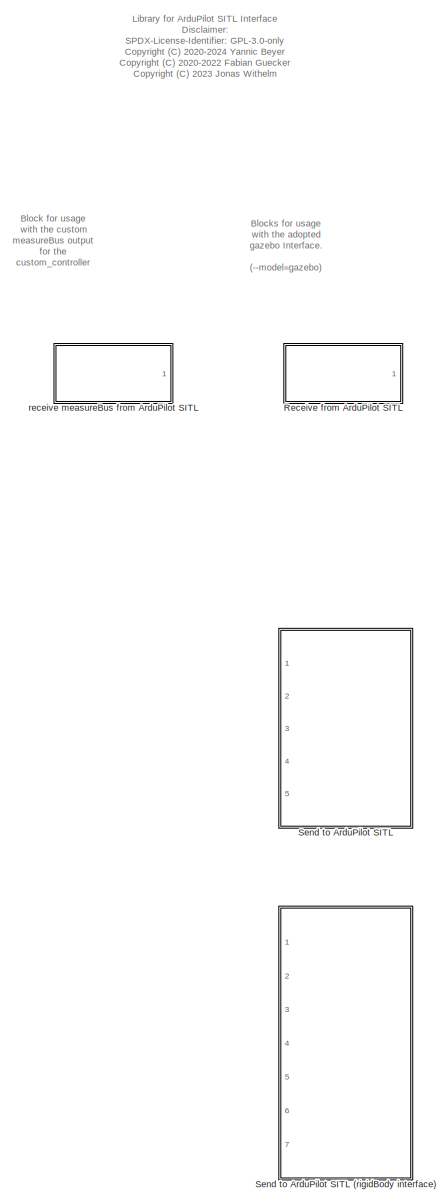
[diagram: root canvas - part 1/2, left side, full height]
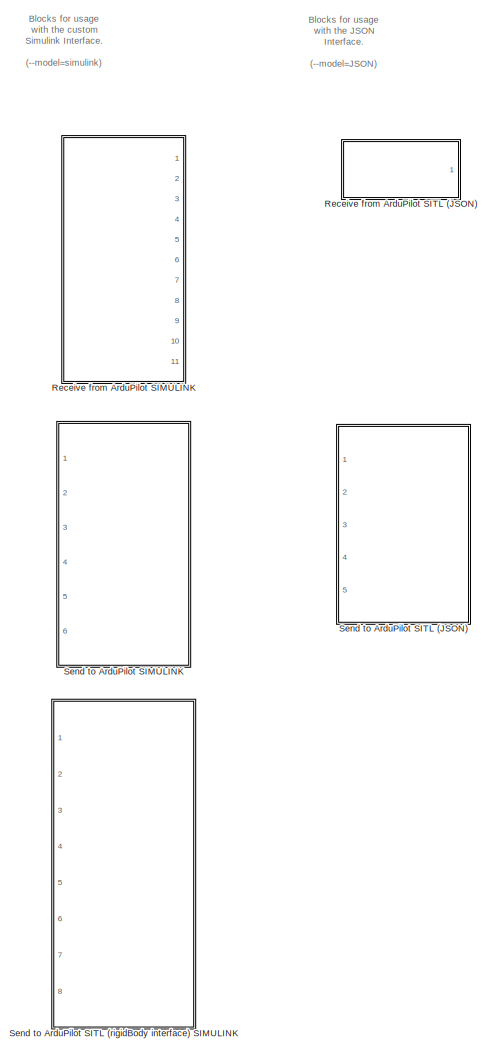
[diagram: root canvas - part 2/2, right side, full height]
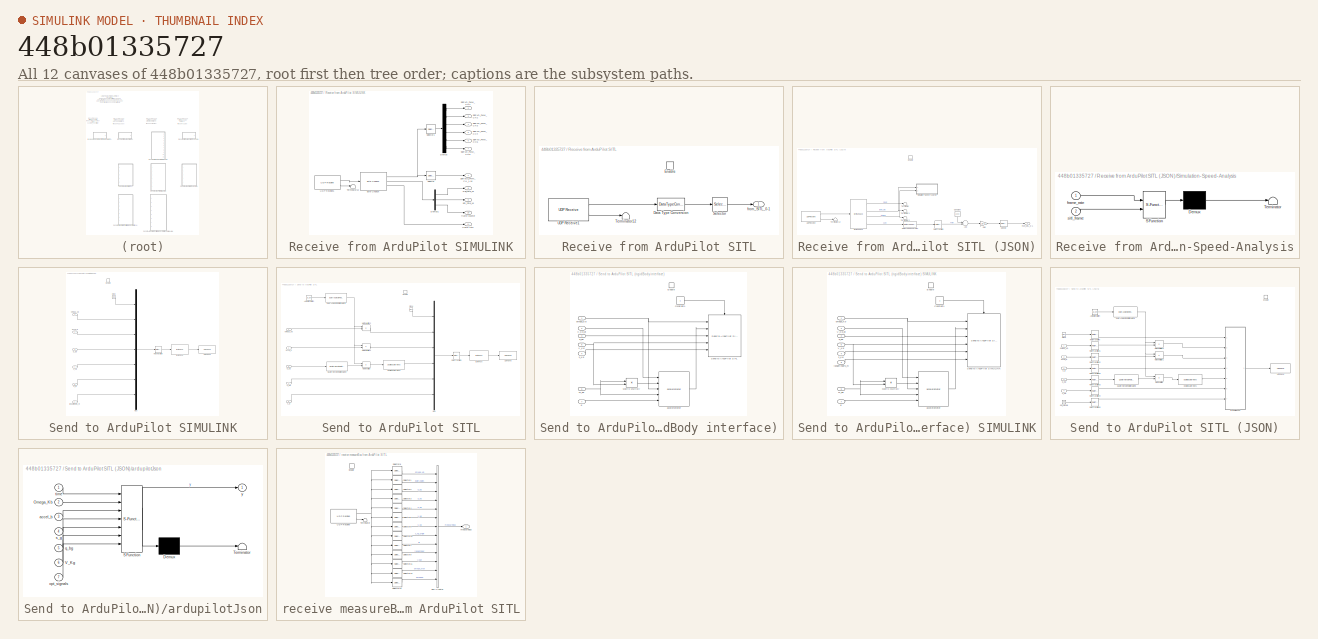
[diagram: thumbnail index - all 12 canvases of the model, root first then tree order]
MODEL slx_448b01335727
KIND library
CONFIG AbsTol = auto
CONFIG EnableMultiTasking = off
CONFIG FixedStep = auto
CONFIG MaxStep = auto
CONFIG MinStep = auto
CONFIG RelTol = 1e-3
CONFIG SampleTimeConstraint = Unconstrained
CONFIG Solver = VariableStepAuto
CONFIG SolverName = VariableStepAuto
CONFIG StartTime = 0.0
CONFIG StopTime = 10.0
BLOCK [SubSystem] Receive from ArduPilot SIMULINK
  Ports = [0, 11]
  RequestExecContextInheritance = off
BLOCK [Reference] Receive from ArduPilot SIMULINK/Byte Unpack  REF=etargetslib/Byte Unpack
  Ports = [1, 3]
  SourceBlock = etargetslib/Byte Unpack
  SourceProductName = /root/.matlab/R2018b/slblocks_master.db is not a database. (file is encrypted or is not a database)
  SourceType = Byte Unpack
BLOCK [Demux] Receive from ArduPilot SIMULINK/Demux
  DisplayOption = bar
  Outputs = 6
  Ports = [1, 6]
BLOCK [Demux] Receive from ArduPilot SIMULINK/Demux1
  DisplayOption = bar
  Outputs = 3
  Ports = [1, 3]
BLOCK [Outport] Receive from ArduPilot SIMULINK/SERVOS_PWM_CH_1-16
  IconDisplay = Port number
BLOCK [Outport] Receive from ArduPilot SIMULINK/SERVO_PWM_CH1
  IconDisplay = Port number
  Port = 2
BLOCK [Outport] Receive from ArduPilot SIMULINK/SERVO_PWM_CH2
  IconDisplay = Port number
  Port = 3
BLOCK [Outport] Receive from ArduPilot SIMULINK/SERVO_PWM_CH3
  IconDisplay = Port number
  Port = 4
BLOCK [Outport] Receive from ArduPilot SIMULINK/SERVO_PWM_CH4
  IconDisplay = Port number
  Port = 5
BLOCK [Outport] Receive from ArduPilot SIMULINK/SERVO_PWM_CH5
  IconDisplay = Port number
  Port = 6
BLOCK [Outport] Receive from ArduPilot SIMULINK/SERVO_PWM_CH6
  IconDisplay = Port number
  Port = 7
BLOCK [Selector] Receive from ArduPilot SIMULINK/Selector
  IndexOptions = Index vector (dialog)
  Indices = [1:16]
  InputPortWidth = 16
  OutputSizes = 1
  Ports = [1, 1]
BLOCK [Selector] Receive from ArduPilot SIMULINK/Selector1
  IndexOptions = Index vector (dialog)
  Indices = [1:6]
  InputPortWidth = 16
  OutputSizes = 1
  Ports = [1, 1]
BLOCK [Terminator] Receive from ArduPilot SIMULINK/Terminator12
BLOCK [Reference] Receive from ArduPilot SIMULINK/UDP Receive1  REF=dspnetwork/UDP Receive
  Ports = [0, 2]
  SourceBlock = dspnetwork/UDP Receive
  SourceProductBaseCode = DS
  SourceProductName = DSP System Toolbox
  SourceType = UDP Receive
BLOCK [Outport] Receive from ArduPilot SIMULINK/frame counter
  IconDisplay = Port number
  Port = 10
BLOCK [Outport] Receive from ArduPilot SIMULINK/frame rate
  IconDisplay = Port number
  Port = 11
BLOCK [Outport] Receive from ArduPilot SIMULINK/sim_time_us
  IconDisplay = Port number
  Port = 9
BLOCK [Outport] Receive from ArduPilot SIMULINK/wall_time_us
  IconDisplay = Port number
  Port = 8
BLOCK [SubSystem] Receive from ArduPilot SITL
  Ports = [0, 1, 1]
  RequestExecContextInheritance = off
BLOCK [SubSystem] Receive from ArduPilot SITL (JSON)
  Ports = [0, 1, 1]
  RequestExecContextInheritance = off
BLOCK [Sum] Receive from ArduPilot SITL (JSON)/Add
  InputSameDT = off
  Inputs = -+
  OutDataTypeStr = Inherit: Inherit via internal rule
  Ports = [2, 1]
  SaturateOnIntegerOverflow = off
BLOCK [Reference] Receive from ArduPilot SITL (JSON)/Byte Unpack  REF=etargetslib/Byte Unpack
  Ports = [1, 4]
  SourceBlock = etargetslib/Byte Unpack
  SourceType = Byte Unpack
BLOCK [Constant] Receive from ArduPilot SITL (JSON)/Constant
  Value = 1000
BLOCK [DataTypeConversion] Receive from ArduPilot SITL (JSON)/Data Type Conversion
  OutDataTypeStr = double
  RndMeth = Floor
  SaturateOnIntegerOverflow = off
BLOCK [EnablePort] Receive from ArduPilot SITL (JSON)/Enable
  Ports = []
BLOCK [Gain] Receive from ArduPilot SITL (JSON)/Gain
  Gain = 1e-3
  OutDataTypeStr = Inherit: Inherit via internal rule
  ParamDataTypeStr = Inherit: Inherit via internal rule
  SaturateOnIntegerOverflow = off
BLOCK [RateTransition] Receive from ArduPilot SITL (JSON)/Rate Transition
BLOCK [Selector] Receive from ArduPilot SITL (JSON)/Selector
  IndexOptions = Index vector (dialog)
  Indices = idx
  InputPortWidth = 16
  OutputSizes = 1
  Ports = [1, 1]
BLOCK [SubSystem] Receive from ArduPilot SITL (JSON)/Simulation-Speed-Analysis
  Commented = on
  ErrorFcn = Stateflow.Translate.translate
  PermitHierarchicalResolution = ExplicitOnly
  Ports = [2]
  RequestExecContextInheritance = off
  SFBlockType = MATLAB Function
  TreatAsAtomicUnit = on
BLOCK [Demux] Receive from ArduPilot SITL (JSON)/Simulation-Speed-Analysis/ Demux 
  Outputs = 1
  Ports = [1, 1]
BLOCK [S-Function] Receive from ArduPilot SITL (JSON)/Simulation-Speed-Analysis/ SFunction 
  EnableBusSupport = off
  FunctionName = sf_sfun
  Parameters = speed_printout_frames
  PortCounts = [2 1]
  Ports = [2, 1]
  SFcnIsStateOwnerBlock = off
  SFunctionDeploymentMode = off
  Tag = Stateflow S-Function ardupilot_sitl_lib 1
BLOCK [Terminator] Receive from ArduPilot SITL (JSON)/Simulation-Speed-Analysis/ Terminator 
BLOCK [Inport] Receive from ArduPilot SITL (JSON)/Simulation-Speed-Analysis/frame_rate
  IconDisplay = Port number
BLOCK [Inport] Receive from ArduPilot SITL (JSON)/Simulation-Speed-Analysis/sitl_frame
  IconDisplay = Port number
  Port = 2
BLOCK [Terminator] Receive from ArduPilot SITL (JSON)/Terminator
BLOCK [Terminator] Receive from ArduPilot SITL (JSON)/Terminator1
BLOCK [Terminator] Receive from ArduPilot SITL (JSON)/Terminator12
BLOCK [Terminator] Receive from ArduPilot SITL (JSON)/Terminator2
BLOCK [Reference] Receive from ArduPilot SITL (JSON)/UDP Receive  REF=dspnetwork/UDP Receive
  Ports = [0, 2]
  SourceBlock = dspnetwork/UDP Receive
  SourceProductBaseCode = DS
  SourceProductName = DSP System Toolbox
  SourceType = UDP Receive
BLOCK [Outport] Receive from ArduPilot SITL (JSON)/from_SITL_0-1
  IconDisplay = Port number
BLOCK [DataTypeConversion] Receive from ArduPilot SITL/Data Type Conversion
  OutDataTypeStr = double
  RndMeth = Floor
  SaturateOnIntegerOverflow = off
BLOCK [EnablePort] Receive from ArduPilot SITL/Enable
  Ports = []
BLOCK [Selector] Receive from ArduPilot SITL/Selector
  IndexOptions = Index vector (dialog)
  Indices = idx
  InputPortWidth = 16
  OutputSizes = 1
  Ports = [1, 1]
BLOCK [Terminator] Receive from ArduPilot SITL/Terminator12
BLOCK [Reference] Receive from ArduPilot SITL/UDP Receive1  REF=dspnetwork/UDP Receive
  Ports = [0, 2]
  SourceBlock = dspnetwork/UDP Receive
  SourceProductBaseCode = DS
  SourceProductName = DSP System Toolbox
  SourceType = UDP Receive
BLOCK [Outport] Receive from ArduPilot SITL/from_SITL_0-1
  IconDisplay = Port number
BLOCK [SubSystem] Send to ArduPilot SIMULINK
  Ports = [6, 0, 1]
  RequestExecContextInheritance = off
BLOCK [Reference] Send to ArduPilot SIMULINK/Byte Pack  REF=etargetslib/Byte Pack
  Ports = [1, 1]
  SourceBlock = etargetslib/Byte Pack
  SourceProductName = /root/.matlab/R2018b/slblocks_master.db is not a database. (file is encrypted or is not a database)
  SourceType = Byte pack
BLOCK [Clock] Send to ArduPilot SIMULINK/Clock
BLOCK [EnablePort] Send to ArduPilot SIMULINK/Enable
  Ports = []
BLOCK [Mux] Send to ArduPilot SIMULINK/Mux
  DisplayOption = bar
  Inputs = 7
  Ports = [7, 1]
BLOCK [RateTransition] Send to ArduPilot SIMULINK/Rate Transition
  OutPortSampleTime = sample_time
BLOCK [Reference] Send to ArduPilot SIMULINK/UDP Send  REF=dspnetwork/UDP Send
  Ports = [1]
  SourceBlock = dspnetwork/UDP Send
  SourceProductBaseCode = DS
  SourceProductName = DSP System Toolbox
  SourceType = UDP Send
BLOCK [Inport] Send to ArduPilot SIMULINK/V_Kg
  IconDisplay = Port number
  OutDataTypeStr = double
  Port = 4
  PortDimensions = [3]
  SignalType = real
  VarSizeSig = No
BLOCK [Inport] Send to ArduPilot SIMULINK/accel_b
  IconDisplay = Port number
  OutDataTypeStr = double
  Port = 2
  PortDimensions = [3]
  SignalType = real
  VarSizeSig = No
BLOCK [Inport] Send to ArduPilot SIMULINK/omega_Kb
  IconDisplay = Port number
  OutDataTypeStr = double
  PortDimensions = [3]
  SignalType = real
  VarSizeSig = No
BLOCK [Inport] Send to ArduPilot SIMULINK/q_gb
  IconDisplay = Port number
  OutDataTypeStr = double
  Port = 3
  PortDimensions = [4]
  SignalType = real
  VarSizeSig = No
BLOCK [Inport] Send to ArduPilot SIMULINK/rangefinders_m
  IconDisplay = Port number
  OutDataTypeStr = double
  Port = 6
  PortDimensions = [6]
  SignalType = real
  VarSizeSig = No
BLOCK [Inport] Send to ArduPilot SIMULINK/s_g
  IconDisplay = Port number
  OutDataTypeStr = double
  Port = 5
  PortDimensions = [3]
  SignalType = real
  VarSizeSig = No
BLOCK [SubSystem] Send to ArduPilot SITL
  Ports = [5, 0, 1]
  RequestExecContextInheritance = off
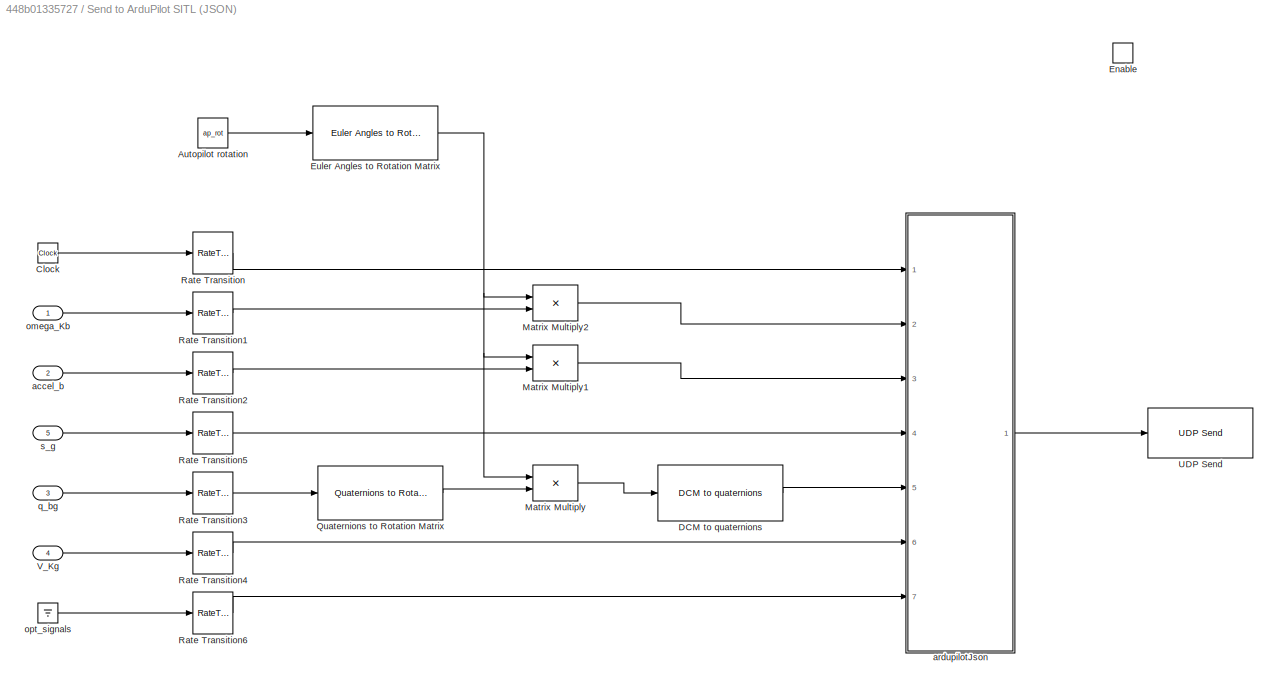
BLOCK [SubSystem] Send to ArduPilot SITL (JSON)
  Ports = [5, 0, 1]
  RequestExecContextInheritance = off
BLOCK [Constant] Send to ArduPilot SITL (JSON)/Autopilot rotation
  Value = ap_rot
BLOCK [Clock] Send to ArduPilot SITL (JSON)/Clock
BLOCK [Reference] Send to ArduPilot SITL (JSON)/DCM to quaternions  REF=axes_transformation_lib/DCM to quaternions  (lib defined in slx_69e2413c78c0)
  Ports = [1, 1]
  SourceBlock = axes_transformation_lib/DCM to quaternions
  SourceProductName = LADAC
  SourceType = SubSystem
BLOCK [EnablePort] Send to ArduPilot SITL (JSON)/Enable
  Ports = []
  PropagateVarSize = During execution
BLOCK [Reference] Send to ArduPilot SITL (JSON)/Euler Angles to Rotation Matrix  REF=axes_transformation_lib/Euler Angles to Rotation Matrix  (lib defined in slx_69e2413c78c0)
  Ports = [1, 1]
  SourceBlock = axes_transformation_lib/Euler Angles to Rotation Matrix
  SourceProductName = LADAC
  SourceType = SubSystem
BLOCK [Product] Send to ArduPilot SITL (JSON)/Matrix Multiply
  InputSameDT = off
  Multiplication = Matrix(*)
  OutDataTypeStr = Inherit: Inherit via internal rule
  Ports = [2, 1]
  RndMeth = Floor
  SaturateOnIntegerOverflow = off
BLOCK [Product] Send to ArduPilot SITL (JSON)/Matrix Multiply1
  InputSameDT = off
  Multiplication = Matrix(*)
  OutDataTypeStr = Inherit: Inherit via internal rule
  Ports = [2, 1]
  RndMeth = Floor
  SaturateOnIntegerOverflow = off
BLOCK [Product] Send to ArduPilot SITL (JSON)/Matrix Multiply2
  InputSameDT = off
  Multiplication = Matrix(*)
  OutDataTypeStr = Inherit: Inherit via internal rule
  Ports = [2, 1]
  RndMeth = Floor
  SaturateOnIntegerOverflow = off
BLOCK [Reference] Send to ArduPilot SITL (JSON)/Quaternions to Rotation Matrix  REF=axes_transformation_lib/Quaternions to Rotation Matrix  (lib defined in slx_69e2413c78c0)
  Ports = [1, 1]
  SourceBlock = axes_transformation_lib/Quaternions to Rotation Matrix
  SourceProductName = LADAC
  SourceType = SubSystem
BLOCK [RateTransition] Send to ArduPilot SITL (JSON)/Rate Transition
  OutPortSampleTime = sample_time
BLOCK [RateTransition] Send to ArduPilot SITL (JSON)/Rate Transition1
  OutPortSampleTime = sample_time
BLOCK [RateTransition] Send to ArduPilot SITL (JSON)/Rate Transition2
  OutPortSampleTime = sample_time
BLOCK [RateTransition] Send to ArduPilot SITL (JSON)/Rate Transition3
  OutPortSampleTime = sample_time
BLOCK [RateTransition] Send to ArduPilot SITL (JSON)/Rate Transition4
  OutPortSampleTime = sample_time
BLOCK [RateTransition] Send to ArduPilot SITL (JSON)/Rate Transition5
  OutPortSampleTime = sample_time
BLOCK [RateTransition] Send to ArduPilot SITL (JSON)/Rate Transition6
  OutPortSampleTime = sample_time
BLOCK [Reference] Send to ArduPilot SITL (JSON)/UDP Send  REF=dspnetwork/UDP Send
  Ports = [1]
  SourceBlock = dspnetwork/UDP Send
  SourceProductBaseCode = DS
  SourceProductName = DSP System Toolbox
  SourceType = UDP Send
BLOCK [Inport] Send to ArduPilot SITL (JSON)/V_Kg
  IconDisplay = Port number
  Port = 4
BLOCK [Inport] Send to ArduPilot SITL (JSON)/accel_b
  IconDisplay = Port number
  Port = 2
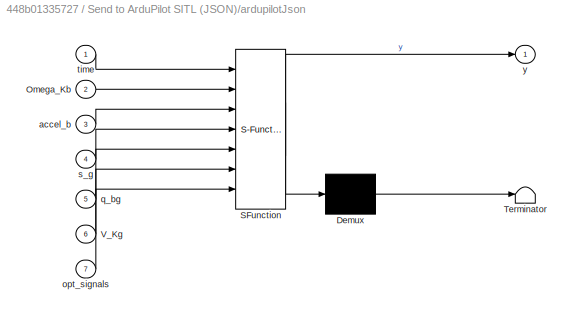
BLOCK [SubSystem] Send to ArduPilot SITL (JSON)/ardupilotJson
  ErrorFcn = Stateflow.Translate.translate
  PermitHierarchicalResolution = ExplicitOnly
  Ports = [7, 1]
  RequestExecContextInheritance = off
  SFBlockType = MATLAB Function
  TreatAsAtomicUnit = on
BLOCK [Demux] Send to ArduPilot SITL (JSON)/ardupilotJson/ Demux 
  Outputs = 1
  Ports = [1, 1]
BLOCK [S-Function] Send to ArduPilot SITL (JSON)/ardupilotJson/ SFunction 
  EnableBusSupport = off
  FunctionName = sf_sfun
  Parameters = opt_signals_uint8
  PortCounts = [7 2]
  Ports = [7, 2]
  SFcnIsStateOwnerBlock = off
  SFunctionDeploymentMode = off
  Tag = Stateflow S-Function ardupilot_sitl_lib 2
BLOCK [Terminator] Send to ArduPilot SITL (JSON)/ardupilotJson/ Terminator 
BLOCK [Inport] Send to ArduPilot SITL (JSON)/ardupilotJson/Omega_Kb
  IconDisplay = Port number
  Port = 2
BLOCK [Inport] Send to ArduPilot SITL (JSON)/ardupilotJson/V_Kg
  IconDisplay = Port number
  Port = 6
BLOCK [Inport] Send to ArduPilot SITL (JSON)/ardupilotJson/accel_b
  IconDisplay = Port number
  Port = 3
BLOCK [Inport] Send to ArduPilot SITL (JSON)/ardupilotJson/opt_signals
  IconDisplay = Port number
  Port = 7
BLOCK [Inport] Send to ArduPilot SITL (JSON)/ardupilotJson/q_bg
  IconDisplay = Port number
  Port = 5
BLOCK [Inport] Send to ArduPilot SITL (JSON)/ardupilotJson/s_g
  IconDisplay = Port number
  Port = 4
BLOCK [Inport] Send to ArduPilot SITL (JSON)/ardupilotJson/time
  IconDisplay = Port number
BLOCK [Outport] Send to ArduPilot SITL (JSON)/ardupilotJson/y
  IconDisplay = Port number
BLOCK [Inport] Send to ArduPilot SITL (JSON)/omega_Kb
  IconDisplay = Port number
BLOCK [Ground] Send to ArduPilot SITL (JSON)/opt_signals
BLOCK [Inport] Send to ArduPilot SITL (JSON)/q_bg
  IconDisplay = Port number
  Port = 3
BLOCK [Inport] Send to ArduPilot SITL (JSON)/s_g
  IconDisplay = Port number
  Port = 5
BLOCK [SubSystem] Send to ArduPilot SITL (rigidBody interface)
  Ports = [7, 0, 1]
  RequestExecContextInheritance = off
BLOCK [SubSystem] Send to ArduPilot SITL (rigidBody interface) SIMULINK
  Ports = [8, 0, 1]
  RequestExecContextInheritance = off
BLOCK [Constant] Send to ArduPilot SITL (rigidBody interface) SIMULINK/Constant1
BLOCK [EnablePort] Send to ArduPilot SITL (rigidBody interface) SIMULINK/Enable
  Ports = []
BLOCK [Inport] Send to ArduPilot SITL (rigidBody interface) SIMULINK/M_bg
  IconDisplay = Port number
  Port = 6
BLOCK [Product] Send to ArduPilot SITL (rigidBody interface) SIMULINK/Matrix Multiply
  InputSameDT = off
  Multiplication = Matrix(*)
  OutDataTypeStr = Inherit: Inherit via internal rule
  Ports = [2, 1]
  RndMeth = Floor
  SaturateOnIntegerOverflow = off
BLOCK [Reference] Send to ArduPilot SITL (rigidBody interface) SIMULINK/Send to ArduPilot SIMULINK  REF=$bdroot/Send to ArduPilot SIMULINK
  Ports = [6, 0, 1]
  SourceBlock = $bdroot/Send to ArduPilot SIMULINK
BLOCK [Inport] Send to ArduPilot SITL (rigidBody interface) SIMULINK/V_Kb_dt
  IconDisplay = Port number
  Port = 2
BLOCK [Inport] Send to ArduPilot SITL (rigidBody interface) SIMULINK/V_Kg
  IconDisplay = Port number
  Port = 5
BLOCK [Reference] Send to ArduPilot SITL (rigidBody interface) SIMULINK/accelerometer  REF=sensors_lib/accelerometer  (lib defined in mdl_052e9be48c24, mdl_88e42053cf8c, +1 more)
  Ports = [5, 1]
  SourceBlock = sensors_lib/accelerometer
  SourceProductName = LADAC
  SourceType = SubSystem
BLOCK [Inport] Send to ArduPilot SITL (rigidBody interface) SIMULINK/g
  IconDisplay = Port number
  Port = 7
BLOCK [Inport] Send to ArduPilot SITL (rigidBody interface) SIMULINK/omega_Kb
  IconDisplay = Port number
BLOCK [Inport] Send to ArduPilot SITL (rigidBody interface) SIMULINK/q_bg
  IconDisplay = Port number
  Port = 3
BLOCK [Inport] Send to ArduPilot SITL (rigidBody interface) SIMULINK/rangefinders_m
  IconDisplay = Port number
  Port = 8
BLOCK [Inport] Send to ArduPilot SITL (rigidBody interface) SIMULINK/s_Kg
  IconDisplay = Port number
  Port = 4
BLOCK [Constant] Send to ArduPilot SITL (rigidBody interface)/Constant1
BLOCK [EnablePort] Send to ArduPilot SITL (rigidBody interface)/Enable
  Ports = []
BLOCK [Inport] Send to ArduPilot SITL (rigidBody interface)/M_bg
  IconDisplay = Port number
  Port = 6
BLOCK [Product] Send to ArduPilot SITL (rigidBody interface)/Matrix Multiply
  InputSameDT = off
  Multiplication = Matrix(*)
  OutDataTypeStr = Inherit: Inherit via internal rule
  Ports = [2, 1]
  RndMeth = Floor
  SaturateOnIntegerOverflow = off
BLOCK [Reference] Send to ArduPilot SITL (rigidBody interface)/Send to ArduPilot SITL  REF=$bdroot/Send to ArduPilot SITL
  Ports = [5, 0, 1]
  SourceBlock = $bdroot/Send to ArduPilot SITL
BLOCK [Inport] Send to ArduPilot SITL (rigidBody interface)/V_Kb_dt
  IconDisplay = Port number
  Port = 2
BLOCK [Inport] Send to ArduPilot SITL (rigidBody interface)/V_Kg
  IconDisplay = Port number
  Port = 5
BLOCK [Reference] Send to ArduPilot SITL (rigidBody interface)/accelerometer  REF=sensors_lib/accelerometer  (lib defined in mdl_052e9be48c24, mdl_88e42053cf8c, +1 more)
  Ports = [5, 1]
  SourceBlock = sensors_lib/accelerometer
  SourceProductName = LADAC
  SourceType = SubSystem
BLOCK [Inport] Send to ArduPilot SITL (rigidBody interface)/g
  IconDisplay = Port number
  Port = 7
BLOCK [Inport] Send to ArduPilot SITL (rigidBody interface)/omega_Kb
  IconDisplay = Port number
BLOCK [Inport] Send to ArduPilot SITL (rigidBody interface)/q_bg
  IconDisplay = Port number
  Port = 3
BLOCK [Inport] Send to ArduPilot SITL (rigidBody interface)/s_Kg
  IconDisplay = Port number
  Port = 4
BLOCK [Constant] Send to ArduPilot SITL/Autopilot rotation
  Value = ap_rot
BLOCK [Reference] Send to ArduPilot SITL/Byte Pack  REF=etargetslib/Byte Pack
  Ports = [1, 1]
  SourceBlock = etargetslib/Byte Pack
  SourceProductName = /root/.matlab/R2018b/slblocks_master.db is not a database. (file is encrypted or is not a database)
  SourceType = Byte pack
BLOCK [Clock] Send to ArduPilot SITL/Clock
BLOCK [Reference] Send to ArduPilot SITL/DCM to quaternions  REF=axes_transformation_lib/DCM to quaternions  (lib defined in slx_69e2413c78c0)
  Ports = [1, 1]
  SourceBlock = axes_transformation_lib/DCM to quaternions
  SourceProductName = LADAC
  SourceType = SubSystem
BLOCK [EnablePort] Send to ArduPilot SITL/Enable
  Ports = []
BLOCK [Reference] Send to ArduPilot SITL/Euler Angles to Rotation Matrix  REF=axes_transformation_lib/Euler Angles to Rotation Matrix  (lib defined in slx_69e2413c78c0)
  Ports = [1, 1]
  SourceBlock = axes_transformation_lib/Euler Angles to Rotation Matrix
  SourceProductName = LADAC
  SourceType = SubSystem
BLOCK [Product] Send to ArduPilot SITL/Matrix Multiply
  InputSameDT = off
  Multiplication = Matrix(*)
  OutDataTypeStr = Inherit: Inherit via internal rule
  Ports = [2, 1]
  RndMeth = Floor
  SaturateOnIntegerOverflow = off
BLOCK [Product] Send to ArduPilot SITL/Matrix Multiply1
  InputSameDT = off
  Multiplication = Matrix(*)
  OutDataTypeStr = Inherit: Inherit via internal rule
  Ports = [2, 1]
  RndMeth = Floor
  SaturateOnIntegerOverflow = off
BLOCK [Product] Send to ArduPilot SITL/Matrix Multiply2
  InputSameDT = off
  Multiplication = Matrix(*)
  OutDataTypeStr = Inherit: Inherit via internal rule
  Ports = [2, 1]
  RndMeth = Floor
  SaturateOnIntegerOverflow = off
BLOCK [Mux] Send to ArduPilot SITL/Mux
  DisplayOption = bar
  Inputs = 6
  Ports = [6, 1]
BLOCK [Reference] Send to ArduPilot SITL/Quaternions to Rotation Matrix  REF=axes_transformation_lib/Quaternions to Rotation Matrix  (lib defined in slx_69e2413c78c0)
  Ports = [1, 1]
  SourceBlock = axes_transformation_lib/Quaternions to Rotation Matrix
  SourceProductName = LADAC
  SourceType = SubSystem
BLOCK [RateTransition] Send to ArduPilot SITL/Rate Transition
  OutPortSampleTime = sample_time
BLOCK [Reference] Send to ArduPilot SITL/UDP Send  REF=dspnetwork/UDP Send
  Ports = [1]
  SourceBlock = dspnetwork/UDP Send
  SourceProductBaseCode = DS
  SourceProductName = DSP System Toolbox
  SourceType = UDP Send
BLOCK [Inport] Send to ArduPilot SITL/V_Kg
  IconDisplay = Port number
  Port = 4
BLOCK [Inport] Send to ArduPilot SITL/accel_b
  IconDisplay = Port number
  Port = 2
BLOCK [Inport] Send to ArduPilot SITL/omega_Kb
  IconDisplay = Port number
BLOCK [Inport] Send to ArduPilot SITL/q_bg
  IconDisplay = Port number
  Port = 3
BLOCK [Inport] Send to ArduPilot SITL/s_g
  IconDisplay = Port number
  Port = 5
BLOCK [SubSystem] receive measureBus from ArduPilot SITL
  Ports = [0, 1, 1]
  RequestExecContextInheritance = off
BLOCK [BusCreator] receive measureBus from ArduPilot SITL/Bus Creator
  DisplayOption = bar
  InheritFromInputs = on
  Inputs = 13
  Ports = [13, 1]
BLOCK [EnablePort] receive measureBus from ArduPilot SITL/Enable
  Ports = []
BLOCK [Selector] receive measureBus from ArduPilot SITL/Selector1
  IndexOptions = Index vector (dialog)
  Indices = 4:6
  InputPortWidth = num_signals
  OutputSizes = 1
  Ports = [1, 1]
BLOCK [Selector] receive measureBus from ArduPilot SITL/Selector10
  IndexOptions = Index vector (dialog)
  Indices = 23:25
  InputPortWidth = num_signals
  OutputSizes = 1
  Ports = [1, 1]
BLOCK [Selector] receive measureBus from ArduPilot SITL/Selector11
  IndexOptions = Index vector (dialog)
  Indices = 35
  InputPortWidth = num_signals
  OutputSizes = 1
  Ports = [1, 1]
BLOCK [Selector] receive measureBus from ArduPilot SITL/Selector12
  IndexOptions = Index vector (dialog)
  Indices = 36:39
  InputPortWidth = num_signals
  OutputSizes = 1
  Ports = [1, 1]
BLOCK [Selector] receive measureBus from ArduPilot SITL/Selector13
  IndexOptions = Index vector (dialog)
  Indices = 40
  InputPortWidth = num_signals
  OutputSizes = 1
  Ports = [1, 1]
BLOCK [Selector] receive measureBus from ArduPilot SITL/Selector2
  IndexOptions = Index vector (dialog)
  Indices = 7:10
  InputPortWidth = num_signals
  OutputSizes = 1
  Ports = [1, 1]
BLOCK [Selector] receive measureBus from ArduPilot SITL/Selector3
  IndexOptions = Index vector (dialog)
  Indices = 11:13
  InputPortWidth = num_signals
  OutputSizes = 1
  Ports = [1, 1]
BLOCK [Selector] receive measureBus from ArduPilot SITL/Selector4
  IndexOptions = Index vector (dialog)
  Indices = 14:16
  InputPortWidth = num_signals
  OutputSizes = 1
  Ports = [1, 1]
BLOCK [Selector] receive measureBus from ArduPilot SITL/Selector5
  IndexOptions = Index vector (dialog)
  Indices = 17:19
  InputPortWidth = num_signals
  OutputSizes = 1
  Ports = [1, 1]
BLOCK [Selector] receive measureBus from ArduPilot SITL/Selector6
  IndexOptions = Index vector (dialog)
  Indices = 20:22
  InputPortWidth = num_signals
  OutputSizes = 1
  Ports = [1, 1]
BLOCK [Selector] receive measureBus from ArduPilot SITL/Selector7
  IndexOptions = Index vector (dialog)
  Indices = 26:28
  InputPortWidth = num_signals
  OutputSizes = 1
  Ports = [1, 1]
BLOCK [Selector] receive measureBus from ArduPilot SITL/Selector8
  IndexOptions = Index vector (dialog)
  Indices = [1,2,3]
  InputPortWidth = num_signals
  OutputSizes = 1
  Ports = [1, 1]
BLOCK [Selector] receive measureBus from ArduPilot SITL/Selector9
  IndexOptions = Index vector (dialog)
  Indices = 29:34
  InputPortWidth = num_signals
  OutputSizes = 1
  Ports = [1, 1]
BLOCK [Terminator] receive measureBus from ArduPilot SITL/Terminator
BLOCK [Reference] receive measureBus from ArduPilot SITL/UDP Receive  REF=dspnetwork/UDP Receive
  Ports = [0, 2]
  SourceBlock = dspnetwork/UDP Receive
  SourceProductBaseCode = DS
  SourceProductName = DSP System Toolbox
  SourceType = UDP Receive
BLOCK [Outport] receive measureBus from ArduPilot SITL/measureBus
  IconDisplay = Port number
ANNOTATION (root): Library for ArduPilot SITL Interface Disclaimer: SPDX-License-Identifier: GPL-3.0-only <copyright redacted>
ANNOTATION (root): Block for usage with the custom measureBus output for the custom_controller
ANNOTATION (root): Blocks for usage with the custom Simulink Interface. (--model=simulink)
ANNOTATION (root): Blocks for usage with the JSON Interface. (--model=JSON)
ANNOTATION (root): Blocks for usage with the adopted gazebo Interface. (--model=gazebo)
NET Receive from ArduPilot SIMULINK/Byte Unpack:1 -> Receive from ArduPilot SIMULINK/Selector1:1, Receive from ArduPilot SIMULINK/Selector:1
LINE Receive from ArduPilot SIMULINK/Byte Unpack:2 -> Receive from ArduPilot SIMULINK/Demux1:1
LINE Receive from ArduPilot SIMULINK/Byte Unpack:3 -> Receive from ArduPilot SIMULINK/frame rate:1
LINE Receive from ArduPilot SIMULINK/Demux1:1 -> Receive from ArduPilot SIMULINK/wall_time_us:1
LINE Receive from ArduPilot SIMULINK/Demux1:2 -> Receive from ArduPilot SIMULINK/sim_time_us:1
LINE Receive from ArduPilot SIMULINK/Demux1:3 -> Receive from ArduPilot SIMULINK/frame counter:1
LINE Receive from ArduPilot SIMULINK/Demux:1 -> Receive from ArduPilot SIMULINK/SERVO_PWM_CH1:1
LINE Receive from ArduPilot SIMULINK/Demux:2 -> Receive from ArduPilot SIMULINK/SERVO_PWM_CH2:1
LINE Receive from ArduPilot SIMULINK/Demux:3 -> Receive from ArduPilot SIMULINK/SERVO_PWM_CH3:1
LINE Receive from ArduPilot SIMULINK/Demux:4 -> Receive from ArduPilot SIMULINK/SERVO_PWM_CH4:1
LINE Receive from ArduPilot SIMULINK/Demux:5 -> Receive from ArduPilot SIMULINK/SERVO_PWM_CH5:1
LINE Receive from ArduPilot SIMULINK/Demux:6 -> Receive from ArduPilot SIMULINK/SERVO_PWM_CH6:1
LINE Receive from ArduPilot SIMULINK/Selector1:1 -> Receive from ArduPilot SIMULINK/Demux:1
LINE Receive from ArduPilot SIMULINK/Selector:1 -> Receive from ArduPilot SIMULINK/SERVOS_PWM_CH_1-16:1
LINE Receive from ArduPilot SIMULINK/UDP Receive1:1 -> Receive from ArduPilot SIMULINK/Byte Unpack:1
LINE Receive from ArduPilot SIMULINK/UDP Receive1:2 -> Receive from ArduPilot SIMULINK/Terminator12:1
LINE Receive from ArduPilot SITL/Data Type Conversion:1 -> Receive from ArduPilot SITL/Selector:1
LINE Receive from ArduPilot SITL/Selector:1 -> Receive from ArduPilot SITL/from_SITL_0-1:1
LINE Receive from ArduPilot SITL/UDP Receive1:1 -> Receive from ArduPilot SITL/Data Type Conversion:1
LINE Receive from ArduPilot SITL/UDP Receive1:2 -> Receive from ArduPilot SITL/Terminator12:1
LINE Send to ArduPilot SIMULINK/Byte Pack:1 -> Send to ArduPilot SIMULINK/UDP Send:1
LINE Send to ArduPilot SIMULINK/Clock:1 -> Send to ArduPilot SIMULINK/Mux:1
LINE Send to ArduPilot SIMULINK/Mux:1 -> Send to ArduPilot SIMULINK/Rate Transition:1
LINE Send to ArduPilot SIMULINK/Rate Transition:1 -> Send to ArduPilot SIMULINK/Byte Pack:1
LINE Send to ArduPilot SIMULINK/V_Kg:1 -> Send to ArduPilot SIMULINK/Mux:5
LINE Send to ArduPilot SIMULINK/accel_b:1 -> Send to ArduPilot SIMULINK/Mux:3
LINE Send to ArduPilot SIMULINK/omega_Kb:1 -> Send to ArduPilot SIMULINK/Mux:2
LINE Send to ArduPilot SIMULINK/q_gb:1 -> Send to ArduPilot SIMULINK/Mux:4
LINE Send to ArduPilot SIMULINK/rangefinders_m:1 -> Send to ArduPilot SIMULINK/Mux:7
LINE Send to ArduPilot SIMULINK/s_g:1 -> Send to ArduPilot SIMULINK/Mux:6
LINE Send to ArduPilot SITL (rigidBody interface) SIMULINK/Constant1:1 -> Send to ArduPilot SITL (rigidBody interface) SIMULINK/Send to ArduPilot SIMULINK:enable
NET Send to ArduPilot SITL (rigidBody interface) SIMULINK/M_bg:1 -> Send to ArduPilot SITL (rigidBody interface) SIMULINK/Matrix Multiply:1, Send to ArduPilot SITL (rigidBody interface) SIMULINK/accelerometer:4
LINE Send to ArduPilot SITL (rigidBody interface) SIMULINK/Matrix Multiply:1 -> Send to ArduPilot SITL (rigidBody interface) SIMULINK/accelerometer:2
LINE Send to ArduPilot SITL (rigidBody interface) SIMULINK/V_Kb_dt:1 -> Send to ArduPilot SITL (rigidBody interface) SIMULINK/accelerometer:1
NET Send to ArduPilot SITL (rigidBody interface) SIMULINK/V_Kg:1 -> Send to ArduPilot SITL (rigidBody interface) SIMULINK/Matrix Multiply:2, Send to ArduPilot SITL (rigidBody interface) SIMULINK/Send to ArduPilot SIMULINK:4
LINE Send to ArduPilot SITL (rigidBody interface) SIMULINK/accelerometer:1 -> Send to ArduPilot SITL (rigidBody interface) SIMULINK/Send to ArduPilot SIMULINK:2
LINE Send to ArduPilot SITL (rigidBody interface) SIMULINK/g:1 -> Send to ArduPilot SITL (rigidBody interface) SIMULINK/accelerometer:5
NET Send to ArduPilot SITL (rigidBody interface) SIMULINK/omega_Kb:1 -> Send to ArduPilot SITL (rigidBody interface) SIMULINK/Send to ArduPilot SIMULINK:1, Send to ArduPilot SITL (rigidBody interface) SIMULINK/accelerometer:3
LINE Send to ArduPilot SITL (rigidBody interface) SIMULINK/q_bg:1 -> Send to ArduPilot SITL (rigidBody interface) SIMULINK/Send to ArduPilot SIMULINK:3
LINE Send to ArduPilot SITL (rigidBody interface) SIMULINK/rangefinders_m:1 -> Send to ArduPilot SITL (rigidBody interface) SIMULINK/Send to ArduPilot SIMULINK:6
LINE Send to ArduPilot SITL (rigidBody interface) SIMULINK/s_Kg:1 -> Send to ArduPilot SITL (rigidBody interface) SIMULINK/Send to ArduPilot SIMULINK:5
LINE Send to ArduPilot SITL (rigidBody interface)/Constant1:1 -> Send to ArduPilot SITL (rigidBody interface)/Send to ArduPilot SITL:enable
NET Send to ArduPilot SITL (rigidBody interface)/M_bg:1 -> Send to ArduPilot SITL (rigidBody interface)/Matrix Multiply:1, Send to ArduPilot SITL (rigidBody interface)/accelerometer:4
LINE Send to ArduPilot SITL (rigidBody interface)/Matrix Multiply:1 -> Send to ArduPilot SITL (rigidBody interface)/accelerometer:2
LINE Send to ArduPilot SITL (rigidBody interface)/V_Kb_dt:1 -> Send to ArduPilot SITL (rigidBody interface)/accelerometer:1
NET Send to ArduPilot SITL (rigidBody interface)/V_Kg:1 -> Send to ArduPilot SITL (rigidBody interface)/Matrix Multiply:2, Send to ArduPilot SITL (rigidBody interface)/Send to ArduPilot SITL:4
LINE Send to ArduPilot SITL (rigidBody interface)/accelerometer:1 -> Send to ArduPilot SITL (rigidBody interface)/Send to ArduPilot SITL:2
LINE Send to ArduPilot SITL (rigidBody interface)/g:1 -> Send to ArduPilot SITL (rigidBody interface)/accelerometer:5
NET Send to ArduPilot SITL (rigidBody interface)/omega_Kb:1 -> Send to ArduPilot SITL (rigidBody interface)/Send to ArduPilot SITL:1, Send to ArduPilot SITL (rigidBody interface)/accelerometer:3
LINE Send to ArduPilot SITL (rigidBody interface)/q_bg:1 -> Send to ArduPilot SITL (rigidBody interface)/Send to ArduPilot SITL:3
LINE Send to ArduPilot SITL (rigidBody interface)/s_Kg:1 -> Send to ArduPilot SITL (rigidBody interface)/Send to ArduPilot SITL:5
LINE Send to ArduPilot SITL/Autopilot rotation:1 -> Send to ArduPilot SITL/Euler Angles to Rotation Matrix:1
LINE Send to ArduPilot SITL/Byte Pack:1 -> Send to ArduPilot SITL/UDP Send:1
LINE Send to ArduPilot SITL/Clock:1 -> Send to ArduPilot SITL/Mux:1
LINE Send to ArduPilot SITL/DCM to quaternions:1 -> Send to ArduPilot SITL/Mux:4
NET Send to ArduPilot SITL/Euler Angles to Rotation Matrix:1 -> Send to ArduPilot SITL/Matrix Multiply1:1, Send to ArduPilot SITL/Matrix Multiply2:1, Send to ArduPilot SITL/Matrix Multiply:1
LINE Send to ArduPilot SITL/Matrix Multiply1:1 -> Send to ArduPilot SITL/Mux:3
LINE Send to ArduPilot SITL/Matrix Multiply2:1 -> Send to ArduPilot SITL/Mux:2
LINE Send to ArduPilot SITL/Matrix Multiply:1 -> Send to ArduPilot SITL/DCM to quaternions:1
LINE Send to ArduPilot SITL/Mux:1 -> Send to ArduPilot SITL/Rate Transition:1
LINE Send to ArduPilot SITL/Quaternions to Rotation Matrix:1 -> Send to ArduPilot SITL/Matrix Multiply:2
LINE Send to ArduPilot SITL/Rate Transition:1 -> Send to ArduPilot SITL/Byte Pack:1
LINE Send to ArduPilot SITL/V_Kg:1 -> Send to ArduPilot SITL/Mux:5
LINE Send to ArduPilot SITL/accel_b:1 -> Send to ArduPilot SITL/Matrix Multiply1:2
LINE Send to ArduPilot SITL/omega_Kb:1 -> Send to ArduPilot SITL/Matrix Multiply2:2
LINE Send to ArduPilot SITL/q_bg:1 -> Send to ArduPilot SITL/Quaternions to Rotation Matrix:1
LINE Send to ArduPilot SITL/s_g:1 -> Send to ArduPilot SITL/Mux:6
LINE receive measureBus from ArduPilot SITL/Bus Creator:1 -> receive measureBus from ArduPilot SITL/measureBus:1
LINE receive measureBus from ArduPilot SITL/Selector10:1 -> receive measureBus from ArduPilot SITL/Bus Creator:8
LINE receive measureBus from ArduPilot SITL/Selector11:1 -> receive measureBus from ArduPilot SITL/Bus Creator:11
LINE receive measureBus from ArduPilot SITL/Selector12:1 -> receive measureBus from ArduPilot SITL/Bus Creator:12
LINE receive measureBus from ArduPilot SITL/Selector13:1 -> receive measureBus from ArduPilot SITL/Bus Creator:13
LINE receive measureBus from ArduPilot SITL/Selector1:1 -> receive measureBus from ArduPilot SITL/Bus Creator:2
LINE receive measureBus from ArduPilot SITL/Selector2:1 -> receive measureBus from ArduPilot SITL/Bus Creator:3
LINE receive measureBus from ArduPilot SITL/Selector3:1 -> receive measureBus from ArduPilot SITL/Bus Creator:4
LINE receive measureBus from ArduPilot SITL/Selector4:1 -> receive measureBus from ArduPilot SITL/Bus Creator:5
LINE receive measureBus from ArduPilot SITL/Selector5:1 -> receive measureBus from ArduPilot SITL/Bus Creator:6
LINE receive measureBus from ArduPilot SITL/Selector6:1 -> receive measureBus from ArduPilot SITL/Bus Creator:7
LINE receive measureBus from ArduPilot SITL/Selector7:1 -> receive measureBus from ArduPilot SITL/Bus Creator:9
LINE receive measureBus from ArduPilot SITL/Selector8:1 -> receive measureBus from ArduPilot SITL/Bus Creator:1
LINE receive measureBus from ArduPilot SITL/Selector9:1 -> receive measureBus from ArduPilot SITL/Bus Creator:10
NET receive measureBus from ArduPilot SITL/UDP Receive:1 -> receive measureBus from ArduPilot SITL/Selector10:1, receive measureBus from ArduPilot SITL/Selector11:1, receive measureBus from ArduPilot SITL/Selector12:1, receive measureBus from ArduPilot SITL/Selector13:1, receive measureBus from ArduPilot SITL/Selector1:1, receive measureBus from ArduPilot SITL/Selector2:1, receive measureBus from ArduPilot SITL/Selector3:1, receive measureBus from ArduPilot SITL/Selector4:1, receive measureBus from ArduPilot SITL/Selector5:1, receive measureBus from ArduPilot SITL/Selector6:1, receive measureBus from ArduPilot SITL/Selector7:1, receive measureBus from ArduPilot SITL/Selector8:1, receive measureBus from ArduPilot SITL/Selector9:1
LINE receive measureBus from ArduPilot SITL/UDP Receive:2 -> receive measureBus from ArduPilot SITL/Terminator:1
note: NET lines group one-source signal fan-out (src -> all destinations, sorted); 1:1 wires keep LINE
CHART Receive from ArduPilot SITL (JSON)/Simulation-Speed-Analysis states=1 transitions=1
  STATE_LABEL 'eML_blk_kernel()'
  STATE_LABEL 'SCRIPT:\nfunction fcn(frame_rate, sitl_frame, speed_printout_frames)\n    \n    sample_time = 1/double(frame_rate);\n\n    ardupilotSimSpeedAnalysis(sample_time, sitl_frame, speed_printout_frames);\n    \nend\n'
CHART Send to ArduPilot SITL (JSON)/ardupilotJson states=1 transitions=1
  STATE_LABEL 'eML_blk_kernel()'
  STATE_LABEL 'SCRIPT:\nfunction y = ardupilotJson(time, Omega_Kb, accel_b, s_g, q_bg, V_Kg, opt_signals, opt_signals_uint8)\nopt_signals_str = char(opt_signals_uint8);\nnum_f = count(opt_signals_str,\'%f\');\nif num_f ~= length(opt_signals)\n    error(\'Send to ArduPilot SITL (JSON): Number of "%f" in parameter "Optional signals string" does not match length of input "opt_signals".\')\nend\n[~,y] = ardupilotJson(time, Ome...<+68ch>'
